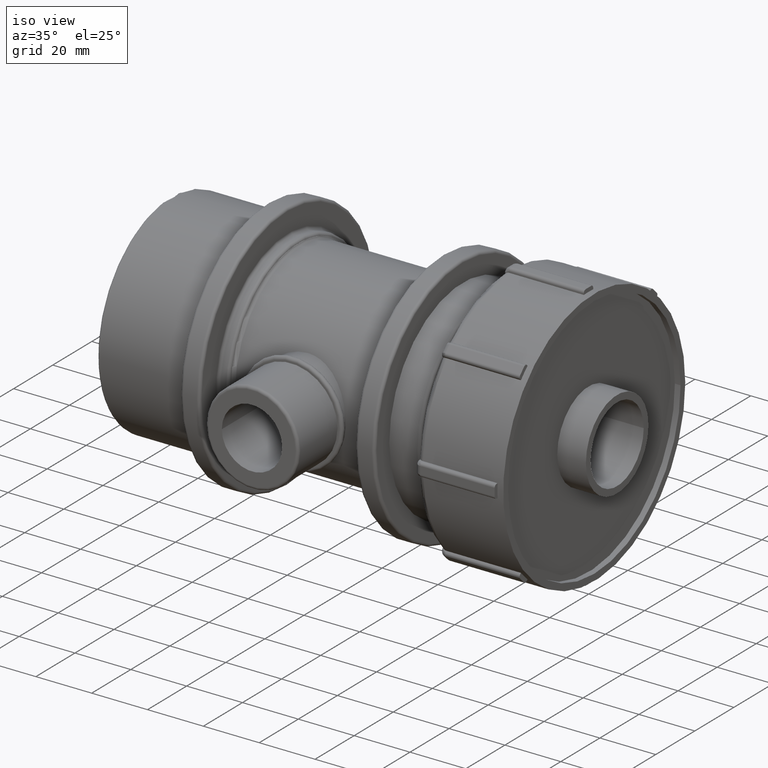
[diagram: clean part render]
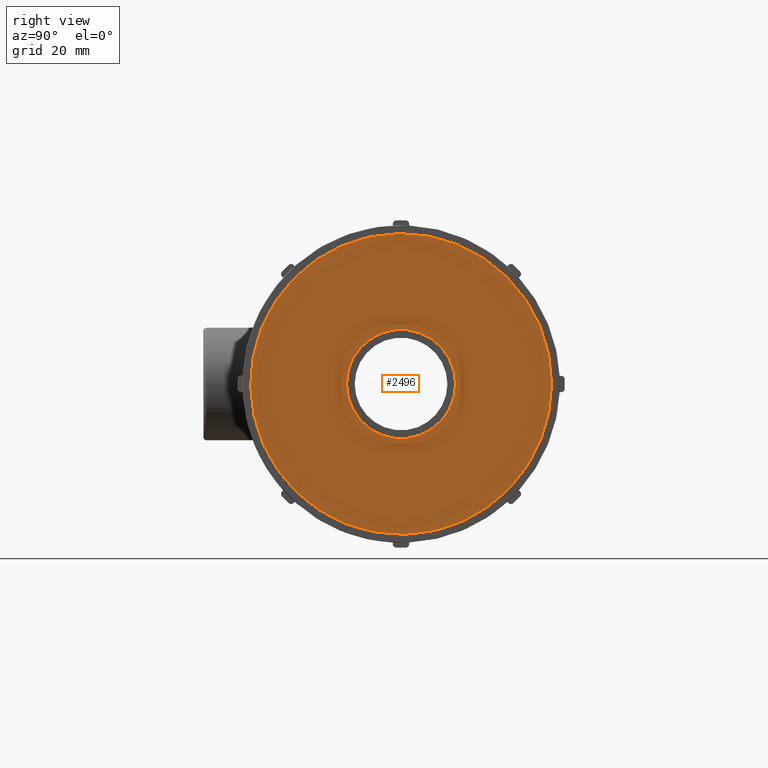
[diagram: tour spotlight — one face highlighted and labeled with its STEP entity id]
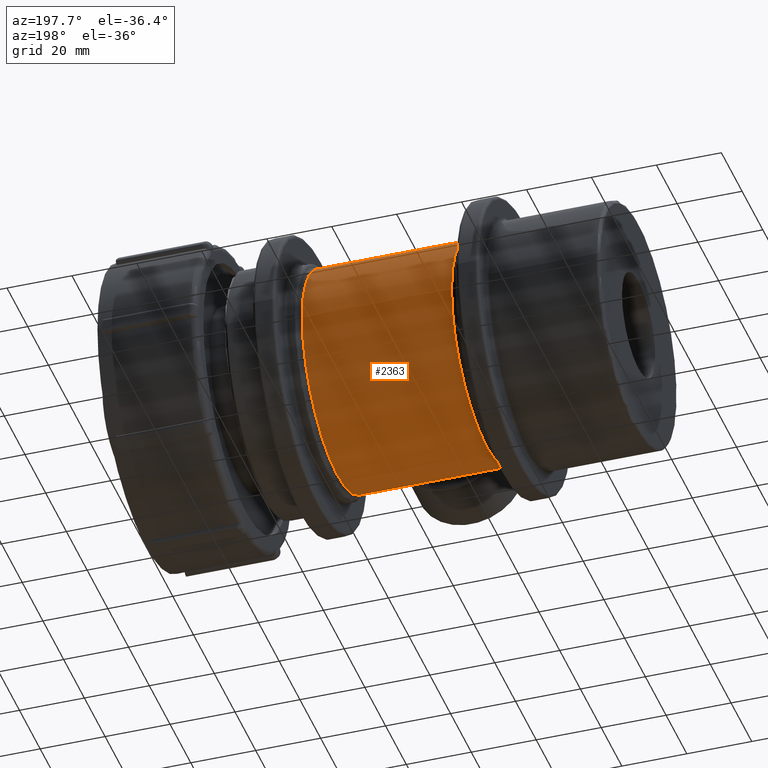
[diagram: tour spotlight — one face highlighted and labeled with its STEP entity id]
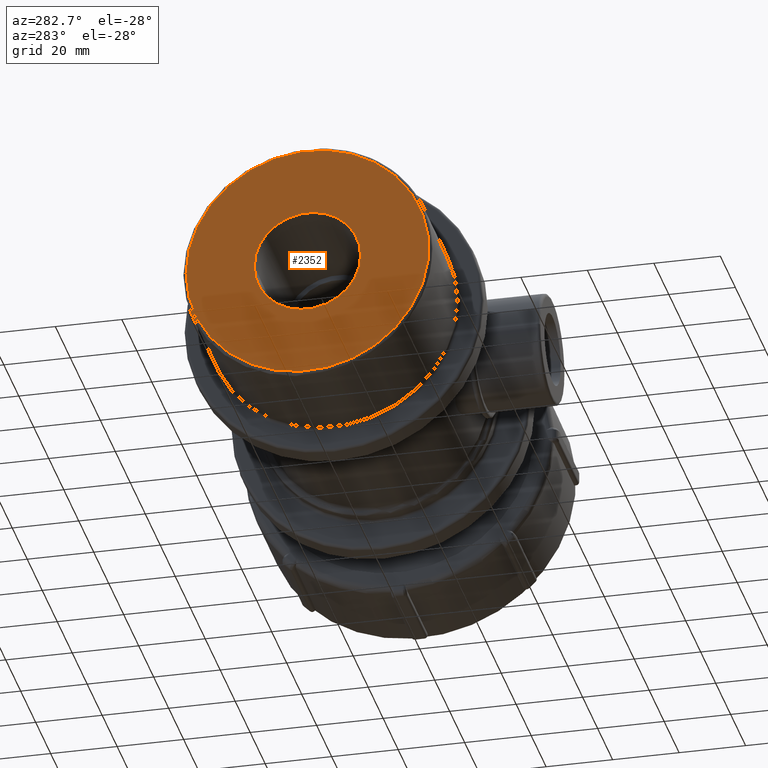
[diagram: tour spotlight — one face highlighted and labeled with its STEP entity id]
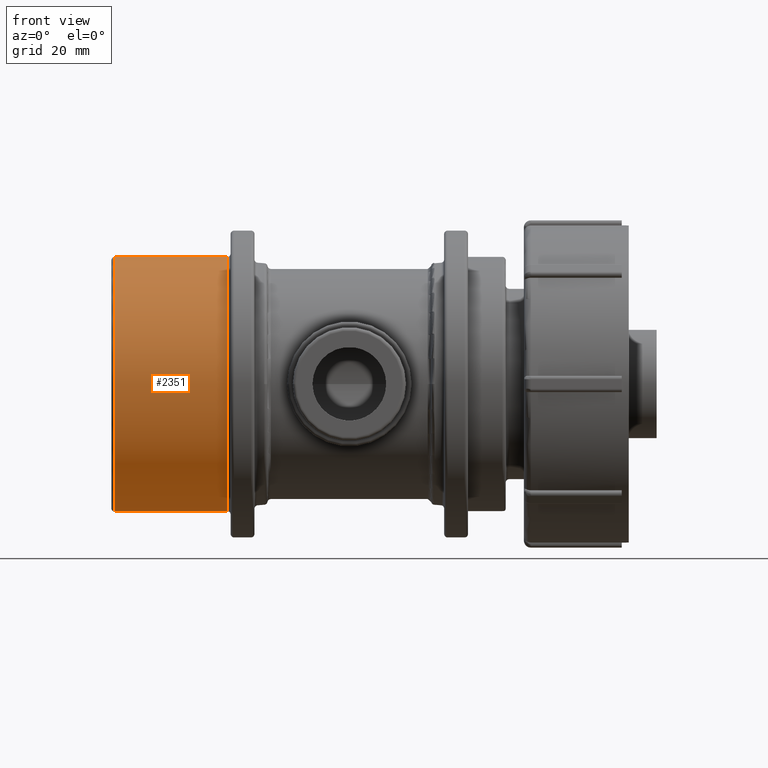
[diagram: tour spotlight — one face highlighted and labeled with its STEP entity id]
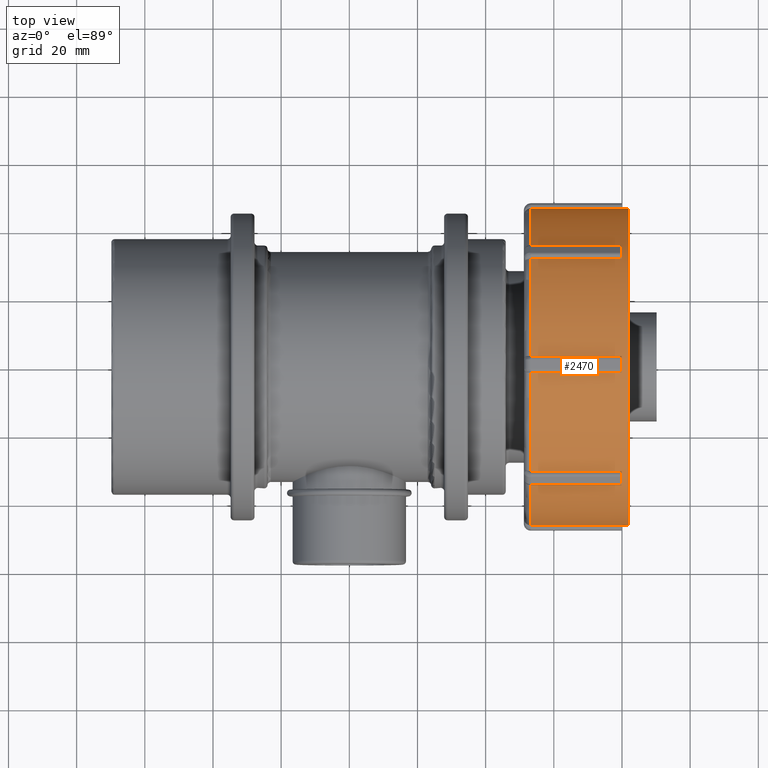
[diagram: tour spotlight — one face highlighted and labeled with its STEP entity id]
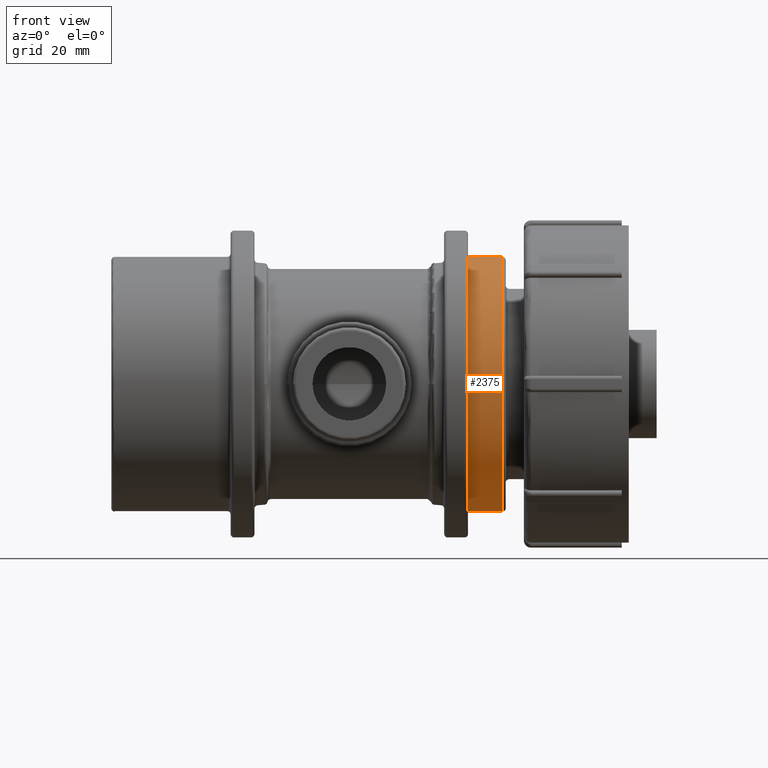
[diagram: tour spotlight — one face highlighted and labeled with its STEP entity id]
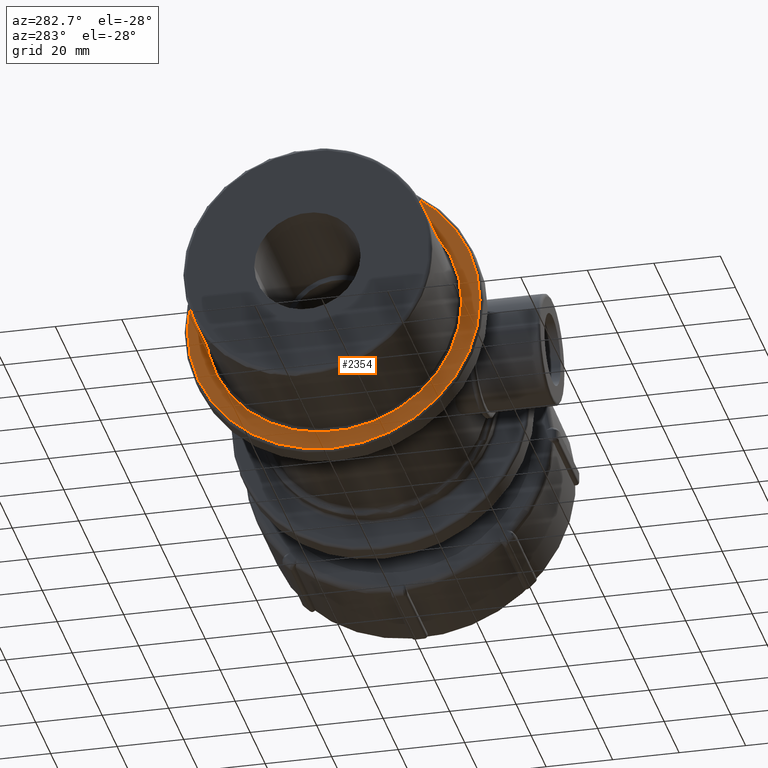
[diagram: tour spotlight — one face highlighted and labeled with its STEP entity id]
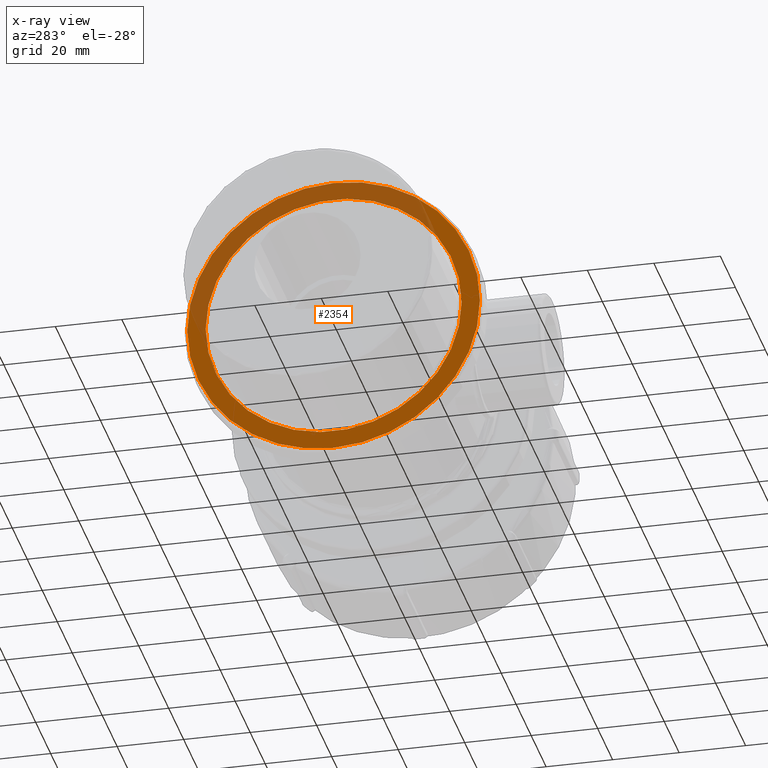
[diagram: x-ray of the same camera — body ghosted, this tour face saturated]
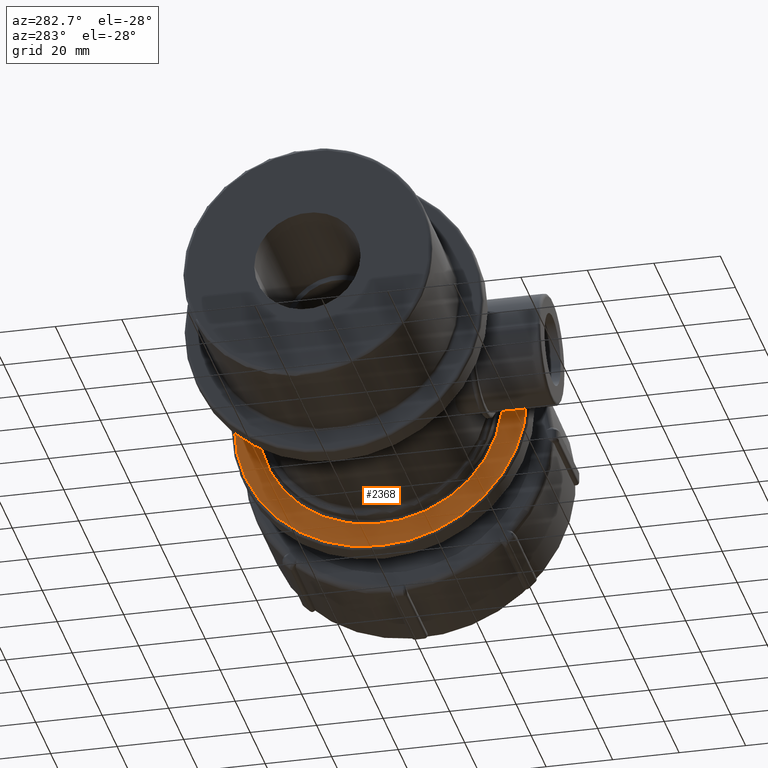
[diagram: tour spotlight — one face highlighted and labeled with its STEP entity id]
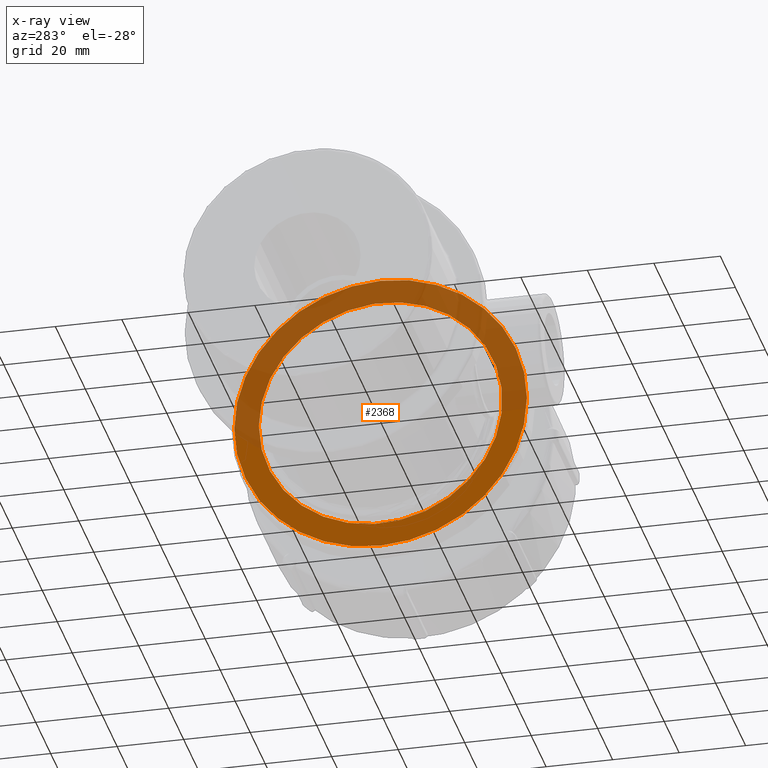
[diagram: x-ray of the same camera — body ghosted, this tour face saturated]
A machine part: a face-by-face anatomy tour. The part has 168 B-rep faces; the first image is the clean iso view, then the 8 largest visible faces are spotlighted one at a time (largest first), each with its STEP entity span.

Face 1 — right view, entity #2496. In plain terms, the highlighted planar face has unit normal (1, 0, 0).
Definition (entity closure, byte-faithful):
#298=PLANE('',#2805);
#476=CIRCLE('',#2804,44.16);
#477=CIRCLE('',#2806,16.);
#555=FACE_BOUND('',#929,.T.);
#724=FACE_OUTER_BOUND('',#928,.T.);
#928=EDGE_LOOP('',(#2244));
#929=EDGE_LOOP('',(#2245));
#1234=VERTEX_POINT('',#4914);
#1235=VERTEX_POINT('',#4917);
#1578=EDGE_CURVE('',#1234,#1234,#476,.T.);
#1579=EDGE_CURVE('',#1235,#1235,#477,.T.);
#2244=ORIENTED_EDGE('',*,*,#1578,.T.);
#2245=ORIENTED_EDGE('',*,*,#1579,.F.);
#2496=ADVANCED_FACE('',(#724,#555),#298,.T.);
#2804=AXIS2_PLACEMENT_3D('',#4915,#3518,#3519);
#2805=AXIS2_PLACEMENT_3D('',#4916,#3520,#3521);
#2806=AXIS2_PLACEMENT_3D('',#4918,#3522,#3523);
#3518=DIRECTION('center_axis',(1.,0.,0.));
#3519=DIRECTION('ref_axis',(0.,0.,-1.));
#3520=DIRECTION('center_axis',(1.,0.,0.));
#3521=DIRECTION('ref_axis',(0.,0.,-1.));
#3522=DIRECTION('center_axis',(1.,0.,0.));
#3523=DIRECTION('ref_axis',(0.,0.,-1.));
#4914=CARTESIAN_POINT('',(79.925,32.8767419692225,-29.4826294195271));
#4915=CARTESIAN_POINT('Origin',(79.925,0.,0.));
#4916=CARTESIAN_POINT('Origin',(79.925,16.,0.));
#4917=CARTESIAN_POINT('',(79.925,16.,0.));
#4918=CARTESIAN_POINT('Origin',(79.925,0.,0.));

Face 2 — auxiliary view, entity #2363. In plain terms, the highlighted cylindrical surface (bore or boss wall) has radius 33.75 mm, axis along (1, 0, 0).
Definition (entity closure, byte-faithful):
#320=CIRCLE('',#2547,33.75);
#321=CIRCLE('',#2549,33.75);
#533=FACE_BOUND('',#774,.T.);
#534=FACE_BOUND('',#775,.T.);
#591=FACE_OUTER_BOUND('',#773,.T.);
#773=EDGE_LOOP('',(#1627));
#774=EDGE_LOOP('',(#1628));
#775=EDGE_LOOP('',(#1629));
#971=B_SPLINE_CURVE_WITH_KNOTS('',3,(#3601,#3602,#3603,#3604,#3605,#3606,
#3607,#3608,#3609,#3610,#3611,#3612,#3613,#3614,#3615,#3616,#3617,#3618,
#3619,#3620,#3621,#3622,#3623,#3624,#3625,#3626,#3627,#3628,#3629,#3630,
#3631,#3632,#3633,#3634),.UNSPECIFIED.,.T.,.F.,(4,2,2,2,2,2,2,2,2,2,2,2,
2,2,2,2,4),(0.,0.410264581091434,0.820529162182867,1.23063317562438,1.6407371890659,
2.05084120250741,2.46094521594892,2.87120979704036,3.28147437813179,3.69173895922322,
4.10200354031466,4.51210755375617,4.92221156719769,5.3323155806392,5.74241959408071,
6.15268417517215,6.56294875626358),.UNSPECIFIED.);
#1023=VERTEX_POINT('',#3600);
#1038=VERTEX_POINT('',#3717);
#1039=VERTEX_POINT('',#3720);
#1255=EDGE_CURVE('',#1023,#1023,#971,.T.);
#1270=EDGE_CURVE('',#1038,#1038,#320,.T.);
#1271=EDGE_CURVE('',#1039,#1039,#321,.T.);
#1627=ORIENTED_EDGE('',*,*,#1271,.F.);
#1628=ORIENTED_EDGE('',*,*,#1255,.T.);
#1629=ORIENTED_EDGE('',*,*,#1270,.F.);
#2291=CYLINDRICAL_SURFACE('',#2548,33.75);
#2363=ADVANCED_FACE('',(#591,#533,#534),#2291,.T.);
#2547=AXIS2_PLACEMENT_3D('',#3718,#2900,#2901);
#2548=AXIS2_PLACEMENT_3D('',#3719,#2902,#2903);
#2549=AXIS2_PLACEMENT_3D('',#3721,#2904,#2905);
#2900=DIRECTION('center_axis',(-1.,0.,0.));
#2901=DIRECTION('ref_axis',(0.,-1.,1.83697019872103E-16));
#2902=DIRECTION('center_axis',(1.,0.,0.));
#2903=DIRECTION('ref_axis',(0.,1.,0.));
#2904=DIRECTION('center_axis',(1.,0.,0.));
#2905=DIRECTION('ref_axis',(0.,1.,1.8490934548735E-14));
#3600=CARTESIAN_POINT('',(7.21644966006352E-15,-31.9733402211026,-10.805925));
#3601=CARTESIAN_POINT('Ctrl Pts',(7.21644966006352E-15,-31.9733402211026,
-10.805925));
#3602=CARTESIAN_POINT('Ctrl Pts',(-1.36754860363811,-31.9733402211026,-10.805925));
#3603=CARTESIAN_POINT('Ctrl Pts',(-2.81904140607973,-32.070282489044,-10.5306388956183));
#3604=CARTESIAN_POINT('Ctrl Pts',(-5.47817304944084,-32.4124416105048,-9.42501926695906));
#3605=CARTESIAN_POINT('Ctrl Pts',(-6.68674183126831,-32.6518864948842,-8.59514385771817));
#3606=CARTESIAN_POINT('Ctrl Pts',(-8.59477040648375,-33.0953762292637,-6.68711528250273));
#3607=CARTESIAN_POINT('Ctrl Pts',(-9.42493401650653,-33.3293456414234,-5.4783965215349));
#3608=CARTESIAN_POINT('Ctrl Pts',(-10.5307676766695,-33.6587724814537,-2.81871323762049));
#3609=CARTESIAN_POINT('Ctrl Pts',(-10.805925,-33.75,-1.36701337813838));
#3610=CARTESIAN_POINT('Ctrl Pts',(-10.805925,-33.75,1.36701337813838));
#3611=CARTESIAN_POINT('Ctrl Pts',(-10.5307676766695,-33.6587724814537,2.81871323762049));
#3612=CARTESIAN_POINT('Ctrl Pts',(-9.42493401650653,-33.3293456414234,5.47839652153489));
#3613=CARTESIAN_POINT('Ctrl Pts',(-8.59477040648376,-33.0953762292637,6.68711528250273));
#3614=CARTESIAN_POINT('Ctrl Pts',(-6.68674183126831,-32.6518864948842,8.59514385771817));
#3615=CARTESIAN_POINT('Ctrl Pts',(-5.47817304944084,-32.4124416105048,9.42501926695906));
#3616=CARTESIAN_POINT('Ctrl Pts',(-2.81904140607973,-32.070282489044,10.5306388956183));
#3617=CARTESIAN_POINT('Ctrl Pts',(-1.36754860363811,-31.9733402211026,10.805925));
#3618=CARTESIAN_POINT('Ctrl Pts',(1.36754860363812,-31.9733402211026,10.805925));
#3619=CARTESIAN_POINT('Ctrl Pts',(2.81904140607974,-32.070282489044,10.5306388956183));
#3620=CARTESIAN_POINT('Ctrl Pts',(5.47817304944085,-32.4124416105048,9.42501926695906));
#3621=CARTESIAN_POINT('Ctrl Pts',(6.68674183126832,-32.6518864948842,8.59514385771817));
#3622=CARTESIAN_POINT('Ctrl Pts',(8.59477040648377,-33.0953762292637,6.68711528250273));
#3623=CARTESIAN_POINT('Ctrl Pts',(9.42493401650655,-33.3293456414234,5.4783965215349));
#3624=CARTESIAN_POINT('Ctrl Pts',(10.5307676766695,-33.6587724814537,2.81871323762049));
#3625=CARTESIAN_POINT('Ctrl Pts',(10.805925,-33.75,1.36701337813838));
#3626=CARTESIAN_POINT('Ctrl Pts',(10.805925,-33.75,-1.36701337813838));
#3627=CARTESIAN_POINT('Ctrl Pts',(10.5307676766695,-33.6587724814537,-2.81871323762048));
#3628=CARTESIAN_POINT('Ctrl Pts',(9.42493401650655,-33.3293456414234,-5.47839652153489));
#3629=CARTESIAN_POINT('Ctrl Pts',(8.59477040648377,-33.0953762292637,-6.68711528250272));
#3630=CARTESIAN_POINT('Ctrl Pts',(6.68674183126832,-32.6518864948842,-8.59514385771817));
#3631=CARTESIAN_POINT('Ctrl Pts',(5.47817304944086,-32.4124416105048,-9.42501926695906));
#3632=CARTESIAN_POINT('Ctrl Pts',(2.81904140607975,-32.070282489044,-10.5306388956183));
#3633=CARTESIAN_POINT('Ctrl Pts',(1.36754860363812,-31.9733402211026,-10.805925));
#3634=CARTESIAN_POINT('Ctrl Pts',(6.93889390390723E-15,-31.9733402211026,
-10.805925));
#3717=CARTESIAN_POINT('',(-23.,33.75,-1.03329573678058E-14));
#3718=CARTESIAN_POINT('Origin',(-23.,0.,0.));
#3719=CARTESIAN_POINT('Origin',(0.,0.,0.));
#3720=CARTESIAN_POINT('',(23.0039100721661,-33.75,-6.28202223966927E-13));
#3721=CARTESIAN_POINT('Origin',(23.0039100721661,0.,0.));

Face 3 — auxiliary view, entity #2352. In plain terms, the highlighted planar face has unit normal (-1, 0, 0).
Definition (entity closure, byte-faithful):
#257=PLANE('',#2526);
#307=CIRCLE('',#2522,36.5);
#310=CIRCLE('',#2527,16.);
#522=FACE_BOUND('',#752,.T.);
#580=FACE_OUTER_BOUND('',#751,.T.);
#751=EDGE_LOOP('',(#1605));
#752=EDGE_LOOP('',(#1606));
#1025=VERTEX_POINT('',#3679);
#1028=VERTEX_POINT('',#3687);
#1257=EDGE_CURVE('',#1025,#1025,#307,.T.);
#1260=EDGE_CURVE('',#1028,#1028,#310,.T.);
#1605=ORIENTED_EDGE('',*,*,#1257,.F.);
#1606=ORIENTED_EDGE('',*,*,#1260,.T.);
#2352=ADVANCED_FACE('',(#580,#522),#257,.T.);
#2522=AXIS2_PLACEMENT_3D('',#3680,#2850,#2851);
#2526=AXIS2_PLACEMENT_3D('',#3686,#2858,#2859);
#2527=AXIS2_PLACEMENT_3D('',#3688,#2860,#2861);
#2850=DIRECTION('center_axis',(1.,0.,0.));
#2851=DIRECTION('ref_axis',(0.,-1.,1.83697019872103E-16));
#2858=DIRECTION('center_axis',(-1.,0.,0.));
#2859=DIRECTION('ref_axis',(0.,0.,1.));
#2860=DIRECTION('center_axis',(1.,0.,0.));
#2861=DIRECTION('ref_axis',(0.,0.,-1.));
#3679=CARTESIAN_POINT('',(-69.825,36.5,-2.23498040844392E-15));
#3680=CARTESIAN_POINT('Origin',(-69.825,0.,0.));
#3686=CARTESIAN_POINT('Origin',(-69.825,37.5,0.));
#3687=CARTESIAN_POINT('',(-69.825,16.,0.));
#3688=CARTESIAN_POINT('Origin',(-69.825,0.,0.));

Face 4 — front view, entity #2351. In plain terms, the highlighted cylindrical surface (bore or boss wall) has radius 37.5 mm, axis along (1, 0, 0).
Definition (entity closure, byte-faithful):
#308=CIRCLE('',#2523,37.5);
#309=CIRCLE('',#2525,37.5);
#521=FACE_BOUND('',#750,.T.);
#579=FACE_OUTER_BOUND('',#749,.T.);
#749=EDGE_LOOP('',(#1603));
#750=EDGE_LOOP('',(#1604));
#1026=VERTEX_POINT('',#3681);
#1027=VERTEX_POINT('',#3684);
#1258=EDGE_CURVE('',#1026,#1026,#308,.T.);
#1259=EDGE_CURVE('',#1027,#1027,#309,.T.);
#1603=ORIENTED_EDGE('',*,*,#1259,.F.);
#1604=ORIENTED_EDGE('',*,*,#1258,.F.);
#2288=CYLINDRICAL_SURFACE('',#2524,37.5);
#2351=ADVANCED_FACE('',(#579,#521),#2288,.T.);
#2523=AXIS2_PLACEMENT_3D('',#3682,#2852,#2853);
#2524=AXIS2_PLACEMENT_3D('',#3683,#2854,#2855);
#2525=AXIS2_PLACEMENT_3D('',#3685,#2856,#2857);
#2852=DIRECTION('center_axis',(-1.,0.,0.));
#2853=DIRECTION('ref_axis',(0.,-1.,1.83697019872103E-16));
#2854=DIRECTION('center_axis',(1.,0.,0.));
#2855=DIRECTION('ref_axis',(0.,1.,0.));
#2856=DIRECTION('center_axis',(1.,0.,0.));
#2857=DIRECTION('ref_axis',(0.,-1.,1.83697019872103E-16));
#3681=CARTESIAN_POINT('',(-68.825,37.5,-1.14810637420064E-14));
#3682=CARTESIAN_POINT('Origin',(-68.825,0.,0.));
#3683=CARTESIAN_POINT('Origin',(-52.325,0.,0.));
#3684=CARTESIAN_POINT('',(-35.825,37.5,-2.29621274840129E-15));
#3685=CARTESIAN_POINT('Origin',(-35.825,0.,0.));

Face 5 — top view, entity #2470. In plain terms, the highlighted cylindrical surface (bore or boss wall) has radius 46.56 mm, axis along (1, 0, 0).
Definition (entity closure, byte-faithful):
#21=LINE('',#3823,#125);
#53=LINE('',#4009,#157);
#62=LINE('',#4131,#166);
#71=LINE('',#4253,#175);
#80=LINE('',#4375,#184);
#89=LINE('',#4497,#193);
#98=LINE('',#4619,#202);
#104=LINE('',#4694,#208);
#105=LINE('',#4703,#209);
#106=LINE('',#4712,#210);
#107=LINE('',#4721,#211);
#108=LINE('',#4730,#212);
#109=LINE('',#4739,#213);
#110=LINE('',#4754,#214);
#111=LINE('',#4761,#215);
#112=LINE('',#4765,#216);
#125=VECTOR('',#2986,26.7);
#157=VECTOR('',#3082,26.7);
#166=VECTOR('',#3135,26.7);
#175=VECTOR('',#3188,26.7);
#184=VECTOR('',#3241,26.7);
#193=VECTOR('',#3294,26.7);
#202=VECTOR('',#3347,26.7);
#208=VECTOR('',#3381,26.7);
#209=VECTOR('',#3384,26.7);
#210=VECTOR('',#3387,26.7);
#211=VECTOR('',#3390,26.7);
#212=VECTOR('',#3393,26.7);
#213=VECTOR('',#3396,26.7);
#214=VECTOR('',#3411,26.7);
#215=VECTOR('',#3418,26.7);
#216=VECTOR('',#3421,26.7);
#344=CIRCLE('',#2590,46.56);
#368=CIRCLE('',#2622,46.56);
#383=CIRCLE('',#2644,46.56);
#398=CIRCLE('',#2666,46.56);
#413=CIRCLE('',#2688,46.56);
#428=CIRCLE('',#2710,46.56);
#443=CIRCLE('',#2732,46.56);
#450=CIRCLE('',#2757,46.56);
#451=CIRCLE('',#2758,46.56);
#452=CIRCLE('',#2759,46.56);
#453=CIRCLE('',#2760,46.56);
#454=CIRCLE('',#2761,46.56);
#455=CIRCLE('',#2762,46.56);
#456=CIRCLE('',#2763,46.56);
#457=CIRCLE('',#2764,46.56);
#458=CIRCLE('',#2765,46.56);
#459=CIRCLE('',#2766,46.56);
#550=FACE_BOUND('',#898,.T.);
#698=FACE_OUTER_BOUND('',#897,.T.);
#897=EDGE_LOOP('',(#2083));
#898=EDGE_LOOP('',(#2084,#2085,#2086,#2087,#2088,#2089,#2090,#2091,#2092,
#2093,#2094,#2095,#2096,#2097,#2098,#2099,#2100,#2101,#2102,#2103,#2104,
#2105,#2106,#2107,#2108,#2109,#2110,#2111,#2112,#2113,#2114,#2115));
#1063=VERTEX_POINT('',#3820);
#1064=VERTEX_POINT('',#3822);
#1067=VERTEX_POINT('',#3835);
#1111=VERTEX_POINT('',#4006);
#1112=VERTEX_POINT('',#4008);
#1115=VERTEX_POINT('',#4021);
#1128=VERTEX_POINT('',#4128);
#1129=VERTEX_POINT('',#4130);
#1132=VERTEX_POINT('',#4143);
#1145=VERTEX_POINT('',#4250);
#1146=VERTEX_POINT('',#4252);
#1149=VERTEX_POINT('',#4265);
#1162=VERTEX_POINT('',#4372);
#1163=VERTEX_POINT('',#4374);
#1166=VERTEX_POINT('',#4387);
#1179=VERTEX_POINT('',#4494);
#1180=VERTEX_POINT('',#4496);
#1183=VERTEX_POINT('',#4509);
#1196=VERTEX_POINT('',#4616);
#1197=VERTEX_POINT('',#4618);
#1200=VERTEX_POINT('',#4631);
#1206=VERTEX_POINT('',#4687);
#1207=VERTEX_POINT('',#4696);
#1208=VERTEX_POINT('',#4705);
#1209=VERTEX_POINT('',#4714);
#1210=VERTEX_POINT('',#4723);
#1211=VERTEX_POINT('',#4732);
#1212=VERTEX_POINT('',#4747);
#1213=VERTEX_POINT('',#4756);
#1214=VERTEX_POINT('',#4758);
#1215=VERTEX_POINT('',#4760);
#1216=VERTEX_POINT('',#4762);
#1217=VERTEX_POINT('',#4764);
#1299=EDGE_CURVE('',#1064,#1063,#21,.T.);
#1304=EDGE_CURVE('',#1063,#1067,#344,.T.);
#1360=EDGE_CURVE('',#1112,#1111,#53,.T.);
#1365=EDGE_CURVE('',#1111,#1115,#368,.T.);
#1389=EDGE_CURVE('',#1129,#1128,#62,.T.);
#1394=EDGE_CURVE('',#1128,#1132,#383,.T.);
#1418=EDGE_CURVE('',#1146,#1145,#71,.T.);
#1423=EDGE_CURVE('',#1145,#1149,#398,.T.);
#1447=EDGE_CURVE('',#1163,#1162,#80,.T.);
#1452=EDGE_CURVE('',#1162,#1166,#413,.T.);
#1476=EDGE_CURVE('',#1180,#1179,#89,.T.);
#1481=EDGE_CURVE('',#1179,#1183,#428,.T.);
#1505=EDGE_CURVE('',#1197,#1196,#98,.T.);
#1510=EDGE_CURVE('',#1196,#1200,#443,.T.);
#1523=EDGE_CURVE('',#1067,#1206,#104,.T.);
#1525=EDGE_CURVE('',#1115,#1207,#105,.T.);
#1527=EDGE_CURVE('',#1132,#1208,#106,.T.);
#1529=EDGE_CURVE('',#1149,#1209,#107,.T.);
#1531=EDGE_CURVE('',#1166,#1210,#108,.T.);
#1533=EDGE_CURVE('',#1183,#1211,#109,.T.);
#1535=EDGE_CURVE('',#1200,#1212,#110,.T.);
#1536=EDGE_CURVE('',#1213,#1213,#450,.T.);
#1537=EDGE_CURVE('',#1214,#1206,#451,.T.);
#1538=EDGE_CURVE('',#1214,#1215,#111,.T.);
#1539=EDGE_CURVE('',#1215,#1216,#452,.T.);
#1540=EDGE_CURVE('',#1216,#1217,#112,.T.);
#1541=EDGE_CURVE('',#1197,#1217,#453,.T.);
#1542=EDGE_CURVE('',#1180,#1212,#454,.T.);
#1543=EDGE_CURVE('',#1163,#1211,#455,.T.);
#1544=EDGE_CURVE('',#1146,#1210,#456,.T.);
#1545=EDGE_CURVE('',#1129,#1209,#457,.T.);
#1546=EDGE_CURVE('',#1112,#1208,#458,.T.);
#1547=EDGE_CURVE('',#1064,#1207,#459,.T.);
#2083=ORIENTED_EDGE('',*,*,#1536,.F.);
#2084=ORIENTED_EDGE('',*,*,#1299,.T.);
#2085=ORIENTED_EDGE('',*,*,#1304,.T.);
#2086=ORIENTED_EDGE('',*,*,#1523,.T.);
#2087=ORIENTED_EDGE('',*,*,#1537,.F.);
#2088=ORIENTED_EDGE('',*,*,#1538,.T.);
#2089=ORIENTED_EDGE('',*,*,#1539,.T.);
#2090=ORIENTED_EDGE('',*,*,#1540,.T.);
#2091=ORIENTED_EDGE('',*,*,#1541,.F.);
#2092=ORIENTED_EDGE('',*,*,#1505,.T.);
#2093=ORIENTED_EDGE('',*,*,#1510,.T.);
#2094=ORIENTED_EDGE('',*,*,#1535,.T.);
#2095=ORIENTED_EDGE('',*,*,#1542,.F.);
#2096=ORIENTED_EDGE('',*,*,#1476,.T.);
#2097=ORIENTED_EDGE('',*,*,#1481,.T.);
#2098=ORIENTED_EDGE('',*,*,#1533,.T.);
#2099=ORIENTED_EDGE('',*,*,#1543,.F.);
#2100=ORIENTED_EDGE('',*,*,#1447,.T.);
#2101=ORIENTED_EDGE('',*,*,#1452,.T.);
#2102=ORIENTED_EDGE('',*,*,#1531,.T.);
#2103=ORIENTED_EDGE('',*,*,#1544,.F.);
#2104=ORIENTED_EDGE('',*,*,#1418,.T.);
#2105=ORIENTED_EDGE('',*,*,#1423,.T.);
#2106=ORIENTED_EDGE('',*,*,#1529,.T.);
#2107=ORIENTED_EDGE('',*,*,#1545,.F.);
#2108=ORIENTED_EDGE('',*,*,#1389,.T.);
#2109=ORIENTED_EDGE('',*,*,#1394,.T.);
#2110=ORIENTED_EDGE('',*,*,#1527,.T.);
#2111=ORIENTED_EDGE('',*,*,#1546,.F.);
#2112=ORIENTED_EDGE('',*,*,#1360,.T.);
#2113=ORIENTED_EDGE('',*,*,#1365,.T.);
#2114=ORIENTED_EDGE('',*,*,#1525,.T.);
#2115=ORIENTED_EDGE('',*,*,#1547,.F.);
#2331=CYLINDRICAL_SURFACE('',#2756,46.56);
#2470=ADVANCED_FACE('',(#698,#550),#2331,.T.);
#2590=AXIS2_PLACEMENT_3D('',#3837,#2993,#2994);
#2622=AXIS2_PLACEMENT_3D('',#4023,#3089,#3090);
#2644=AXIS2_PLACEMENT_3D('',#4145,#3142,#3143);
#2666=AXIS2_PLACEMENT_3D('',#4267,#3195,#3196);
#2688=AXIS2_PLACEMENT_3D('',#4389,#3248,#3249);
#2710=AXIS2_PLACEMENT_3D('',#4511,#3301,#3302);
#2732=AXIS2_PLACEMENT_3D('',#4633,#3354,#3355);
#2756=AXIS2_PLACEMENT_3D('',#4755,#3412,#3413);
#2757=AXIS2_PLACEMENT_3D('',#4757,#3414,#3415);
#2758=AXIS2_PLACEMENT_3D('',#4759,#3416,#3417);
#2759=AXIS2_PLACEMENT_3D('',#4763,#3419,#3420);
#2760=AXIS2_PLACEMENT_3D('',#4766,#3422,#3423);
#2761=AXIS2_PLACEMENT_3D('',#4767,#3424,#3425);
#2762=AXIS2_PLACEMENT_3D('',#4768,#3426,#3427);
#2763=AXIS2_PLACEMENT_3D('',#4769,#3428,#3429);
#2764=AXIS2_PLACEMENT_3D('',#4770,#3430,#3431);
#2765=AXIS2_PLACEMENT_3D('',#4771,#3432,#3433);
#2766=AXIS2_PLACEMENT_3D('',#4772,#3434,#3435);
#2986=DIRECTION('',(1.,0.,0.));
#2993=DIRECTION('center_axis',(1.,0.,0.));
#2994=DIRECTION('ref_axis',(0.,1.,0.));
#3082=DIRECTION('',(1.,0.,0.));
#3089=DIRECTION('center_axis',(1.,0.,0.));
#3090=DIRECTION('ref_axis',(0.,1.,0.));
#3135=DIRECTION('',(1.,0.,0.));
#3142=DIRECTION('center_axis',(1.,0.,0.));
#3143=DIRECTION('ref_axis',(0.,1.,0.));
#3188=DIRECTION('',(1.,0.,0.));
#3195=DIRECTION('center_axis',(1.,0.,0.));
#3196=DIRECTION('ref_axis',(0.,1.,0.));
#3241=DIRECTION('',(1.,0.,0.));
#3248=DIRECTION('center_axis',(1.,0.,0.));
#3249=DIRECTION('ref_axis',(0.,1.,0.));
#3294=DIRECTION('',(1.,0.,0.));
#3301=DIRECTION('center_axis',(1.,0.,0.));
#3302=DIRECTION('ref_axis',(0.,1.,0.));
#3347=DIRECTION('',(1.,0.,0.));
#3354=DIRECTION('center_axis',(1.,0.,0.));
#3355=DIRECTION('ref_axis',(0.,1.,0.));
#3381=DIRECTION('',(-1.,0.,0.));
#3384=DIRECTION('',(-1.,0.,0.));
#3387=DIRECTION('',(-1.,0.,0.));
#3390=DIRECTION('',(-1.,0.,0.));
#3393=DIRECTION('',(-1.,0.,0.));
#3396=DIRECTION('',(-1.,0.,0.));
#3411=DIRECTION('',(-1.,0.,0.));
#3412=DIRECTION('center_axis',(1.,0.,0.));
#3413=DIRECTION('ref_axis',(0.,1.,0.));
#3414=DIRECTION('center_axis',(1.,0.,0.));
#3415=DIRECTION('ref_axis',(0.,0.,-1.));
#3416=DIRECTION('center_axis',(-1.,0.,0.));
#3417=DIRECTION('ref_axis',(0.,-1.,1.83697019872103E-16));
#3418=DIRECTION('',(1.,0.,0.));
#3419=DIRECTION('center_axis',(1.,0.,0.));
#3420=DIRECTION('ref_axis',(0.,1.,0.));
#3421=DIRECTION('',(-1.,0.,0.));
#3422=DIRECTION('center_axis',(-1.,0.,0.));
#3423=DIRECTION('ref_axis',(0.,-1.,1.83697019872103E-16));
#3424=DIRECTION('center_axis',(-1.,0.,0.));
#3425=DIRECTION('ref_axis',(0.,-1.,1.83697019872103E-16));
#3426=DIRECTION('center_axis',(-1.,0.,0.));
#3427=DIRECTION('ref_axis',(0.,-1.,1.83697019872103E-16));
#3428=DIRECTION('center_axis',(-1.,0.,0.));
#3429=DIRECTION('ref_axis',(0.,-1.,1.83697019872103E-16));
#3430=DIRECTION('center_axis',(-1.,0.,0.));
#3431=DIRECTION('ref_axis',(0.,-1.,1.83697019872103E-16));
#3432=DIRECTION('center_axis',(-1.,0.,0.));
#3433=DIRECTION('ref_axis',(0.,-1.,1.83697019872103E-16));
#3434=DIRECTION('center_axis',(-1.,0.,0.));
#3435=DIRECTION('ref_axis',(0.,-1.,1.83697019872103E-16));
#3820=CARTESIAN_POINT('',(79.925,31.1820678010762,-34.5761803507717));
#3822=CARTESIAN_POINT('',(53.225,31.1820678010762,-34.5761803507717));
#3823=CARTESIAN_POINT('',(66.6,31.1820678010762,-34.5761803507717));
#3835=CARTESIAN_POINT('',(79.925,34.5761803507716,-31.1820678010762));
#3837=CARTESIAN_POINT('Origin',(79.925,0.,0.));
#4006=CARTESIAN_POINT('',(79.925,-2.4,-46.4981031871194));
#4008=CARTESIAN_POINT('',(53.225,-2.4,-46.4981031871194));
#4009=CARTESIAN_POINT('',(66.6,-2.4,-46.4981031871194));
#4021=CARTESIAN_POINT('',(79.925,2.39999999999999,-46.4981031871194));
#4023=CARTESIAN_POINT('Origin',(79.925,0.,0.));
#4128=CARTESIAN_POINT('',(79.925,-34.5761803507717,-31.1820678010762));
#4130=CARTESIAN_POINT('',(53.225,-34.5761803507717,-31.1820678010762));
#4131=CARTESIAN_POINT('',(66.6,-34.5761803507717,-31.1820678010762));
#4143=CARTESIAN_POINT('',(79.925,-31.1820678010762,-34.5761803507716));
#4145=CARTESIAN_POINT('Origin',(79.925,0.,0.));
#4250=CARTESIAN_POINT('',(79.925,-46.4981031871194,2.4));
#4252=CARTESIAN_POINT('',(53.225,-46.4981031871194,2.4));
#4253=CARTESIAN_POINT('',(66.6,-46.4981031871194,2.4));
#4265=CARTESIAN_POINT('',(79.925,-46.4981031871194,-2.39999999999999));
#4267=CARTESIAN_POINT('Origin',(79.925,0.,0.));
#4372=CARTESIAN_POINT('',(79.925,-31.1820678010762,34.5761803507716));
#4374=CARTESIAN_POINT('',(53.225,-31.1820678010762,34.5761803507716));
#4375=CARTESIAN_POINT('',(66.6,-31.1820678010762,34.5761803507716));
#4387=CARTESIAN_POINT('',(79.925,-34.5761803507716,31.1820678010762));
#4389=CARTESIAN_POINT('Origin',(79.925,0.,0.));
#4494=CARTESIAN_POINT('',(79.925,2.4,46.4981031871194));
#4496=CARTESIAN_POINT('',(53.225,2.4,46.4981031871194));
#4497=CARTESIAN_POINT('',(66.6,2.4,46.4981031871194));
#4509=CARTESIAN_POINT('',(79.925,-2.4,46.4981031871194));
#4511=CARTESIAN_POINT('Origin',(79.925,0.,0.));
#4616=CARTESIAN_POINT('',(79.925,34.5761803507716,31.1820678010762));
#4618=CARTESIAN_POINT('',(53.225,34.5761803507716,31.1820678010762));
#4619=CARTESIAN_POINT('',(66.6,34.5761803507716,31.1820678010762));
#4631=CARTESIAN_POINT('',(79.925,31.1820678010762,34.5761803507716));
#4633=CARTESIAN_POINT('Origin',(79.925,0.,0.));
#4687=CARTESIAN_POINT('',(53.225,34.5761803507716,-31.1820678010762));
#4694=CARTESIAN_POINT('',(66.6,34.5761803507716,-31.1820678010762));
#4696=CARTESIAN_POINT('',(53.225,2.39999999999999,-46.4981031871194));
#4703=CARTESIAN_POINT('',(66.6,2.39999999999999,-46.4981031871194));
#4705=CARTESIAN_POINT('',(53.225,-31.1820678010762,-34.5761803507716));
#4712=CARTESIAN_POINT('',(66.6,-31.1820678010762,-34.5761803507716));
#4714=CARTESIAN_POINT('',(53.225,-46.4981031871194,-2.39999999999999));
#4721=CARTESIAN_POINT('',(66.6,-46.4981031871194,-2.39999999999999));
#4723=CARTESIAN_POINT('',(53.225,-34.5761803507716,31.1820678010762));
#4730=CARTESIAN_POINT('',(66.6,-34.5761803507716,31.1820678010762));
#4732=CARTESIAN_POINT('',(53.225,-2.4,46.4981031871194));
#4739=CARTESIAN_POINT('',(66.6,-2.4,46.4981031871194));
#4747=CARTESIAN_POINT('',(53.225,31.1820678010762,34.5761803507716));
#4754=CARTESIAN_POINT('',(66.6,31.1820678010762,34.5761803507716));
#4755=CARTESIAN_POINT('Origin',(66.6,0.,0.));
#4756=CARTESIAN_POINT('',(81.975,46.56,0.));
#4757=CARTESIAN_POINT('Origin',(81.975,0.,0.));
#4758=CARTESIAN_POINT('',(53.225,46.4981031871194,-2.4));
#4759=CARTESIAN_POINT('Origin',(53.225,0.,0.));
#4760=CARTESIAN_POINT('',(79.925,46.4981031871194,-2.4));
#4761=CARTESIAN_POINT('',(66.6,46.4981031871194,-2.4));
#4762=CARTESIAN_POINT('',(79.925,46.4981031871194,2.4));
#4763=CARTESIAN_POINT('Origin',(79.925,0.,0.));
#4764=CARTESIAN_POINT('',(53.225,46.4981031871194,2.4));
#4765=CARTESIAN_POINT('',(66.6,46.4981031871194,2.4));
#4766=CARTESIAN_POINT('Origin',(53.225,0.,0.));
#4767=CARTESIAN_POINT('Origin',(53.225,0.,0.));
#4768=CARTESIAN_POINT('Origin',(53.225,0.,0.));
#4769=CARTESIAN_POINT('Origin',(53.225,0.,0.));
#4770=CARTESIAN_POINT('Origin',(53.225,0.,0.));
#4771=CARTESIAN_POINT('Origin',(53.225,0.,0.));
#4772=CARTESIAN_POINT('Origin',(53.225,0.,0.));

Face 6 — front view, entity #2375. In plain terms, the highlighted cylindrical surface (bore or boss wall) has radius 37.5 mm, axis along (1, 0, 0).
Definition (entity closure, byte-faithful):
#330=CIRCLE('',#2567,37.5);
#331=CIRCLE('',#2569,37.5);
#546=FACE_BOUND('',#799,.T.);
#603=FACE_OUTER_BOUND('',#798,.T.);
#798=EDGE_LOOP('',(#1652));
#799=EDGE_LOOP('',(#1653));
#1048=VERTEX_POINT('',#3747);
#1049=VERTEX_POINT('',#3750);
#1280=EDGE_CURVE('',#1048,#1048,#330,.T.);
#1281=EDGE_CURVE('',#1049,#1049,#331,.T.);
#1652=ORIENTED_EDGE('',*,*,#1280,.T.);
#1653=ORIENTED_EDGE('',*,*,#1281,.F.);
#2294=CYLINDRICAL_SURFACE('',#2573,37.5);
#2375=ADVANCED_FACE('',(#603,#546),#2294,.T.);
#2567=AXIS2_PLACEMENT_3D('',#3748,#2940,#2941);
#2569=AXIS2_PLACEMENT_3D('',#3751,#2944,#2945);
#2573=AXIS2_PLACEMENT_3D('',#3757,#2952,#2953);
#2940=DIRECTION('center_axis',(1.,0.,0.));
#2941=DIRECTION('ref_axis',(0.,0.,-1.));
#2944=DIRECTION('center_axis',(1.,0.,0.));
#2945=DIRECTION('ref_axis',(0.,-1.,1.83697019872103E-16));
#2952=DIRECTION('center_axis',(1.,0.,0.));
#2953=DIRECTION('ref_axis',(0.,1.,0.));
#3747=CARTESIAN_POINT('',(34.825,37.5,0.));
#3748=CARTESIAN_POINT('Origin',(34.825,0.,0.));
#3750=CARTESIAN_POINT('',(44.895,37.5,-2.29621274840129E-15));
#3751=CARTESIAN_POINT('Origin',(44.895,0.,0.));
#3757=CARTESIAN_POINT('Origin',(40.36,0.,0.));

Face 7 — auxiliary view, entity #2354. An x-ray twin of the same camera follows (body ghosted, this face saturated) — the face is partly hidden behind the body. In plain terms, the highlighted planar face has unit normal (-1, 0, 0).
Definition (entity closure, byte-faithful):
#258=PLANE('',#2530);
#311=CIRCLE('',#2529,38.5);
#312=CIRCLE('',#2531,44.);
#524=FACE_BOUND('',#756,.T.);
#582=FACE_OUTER_BOUND('',#755,.T.);
#755=EDGE_LOOP('',(#1609));
#756=EDGE_LOOP('',(#1610));
#1029=VERTEX_POINT('',#3690);
#1030=VERTEX_POINT('',#3693);
#1261=EDGE_CURVE('',#1029,#1029,#311,.T.);
#1262=EDGE_CURVE('',#1030,#1030,#312,.T.);
#1609=ORIENTED_EDGE('',*,*,#1262,.F.);
#1610=ORIENTED_EDGE('',*,*,#1261,.F.);
#2354=ADVANCED_FACE('',(#582,#524),#258,.T.);
#2529=AXIS2_PLACEMENT_3D('',#3691,#2864,#2865);
#2530=AXIS2_PLACEMENT_3D('',#3692,#2866,#2867);
#2531=AXIS2_PLACEMENT_3D('',#3694,#2868,#2869);
#2864=DIRECTION('center_axis',(-1.,0.,0.));
#2865=DIRECTION('ref_axis',(0.,-1.,1.83697019872103E-16));
#2866=DIRECTION('center_axis',(-1.,0.,0.));
#2867=DIRECTION('ref_axis',(0.,0.,1.));
#2868=DIRECTION('center_axis',(1.,0.,0.));
#2869=DIRECTION('ref_axis',(0.,-1.,1.83697019872103E-16));
#3690=CARTESIAN_POINT('',(-34.825,38.5,-1.17872254417933E-14));
#3691=CARTESIAN_POINT('Origin',(-34.825,0.,0.));
#3692=CARTESIAN_POINT('Origin',(-34.825,45.,0.));
#3693=CARTESIAN_POINT('',(-34.825,44.,-2.69422295812418E-15));
#3694=CARTESIAN_POINT('Origin',(-34.825,0.,0.));

Face 8 — auxiliary view, entity #2368. An x-ray twin of the same camera follows (body ghosted, this face saturated) — the face is partly hidden behind the body. In plain terms, the highlighted planar face has unit normal (-1, 0, 0).
Definition (entity closure, byte-faithful):
#260=PLANE('',#2558);
#325=CIRCLE('',#2557,36.625);
#326=CIRCLE('',#2559,44.);
#539=FACE_BOUND('',#785,.T.);
#596=FACE_OUTER_BOUND('',#784,.T.);
#784=EDGE_LOOP('',(#1638));
#785=EDGE_LOOP('',(#1639));
#1043=VERTEX_POINT('',#3732);
#1044=VERTEX_POINT('',#3735);
#1275=EDGE_CURVE('',#1043,#1043,#325,.T.);
#1276=EDGE_CURVE('',#1044,#1044,#326,.T.);
#1638=ORIENTED_EDGE('',*,*,#1276,.F.);
#1639=ORIENTED_EDGE('',*,*,#1275,.F.);
#2368=ADVANCED_FACE('',(#596,#539),#260,.T.);
#2557=AXIS2_PLACEMENT_3D('',#3733,#2920,#2921);
#2558=AXIS2_PLACEMENT_3D('',#3734,#2922,#2923);
#2559=AXIS2_PLACEMENT_3D('',#3736,#2924,#2925);
#2920=DIRECTION('center_axis',(-1.,0.,0.));
#2921=DIRECTION('ref_axis',(0.,-1.,1.83697019872103E-16));
#2922=DIRECTION('center_axis',(-1.,0.,0.));
#2923=DIRECTION('ref_axis',(0.,0.,1.));
#2924=DIRECTION('center_axis',(1.,0.,0.));
#2925=DIRECTION('ref_axis',(0.,-1.,1.83697019872103E-16));
#3732=CARTESIAN_POINT('',(27.825,36.625,-1.1213172254693E-14));
#3733=CARTESIAN_POINT('Origin',(27.825,0.,0.));
#3734=CARTESIAN_POINT('Origin',(27.825,45.,0.));
#3735=CARTESIAN_POINT('',(27.825,44.,-2.69422295812418E-15));
#3736=CARTESIAN_POINT('Origin',(27.825,0.,0.));